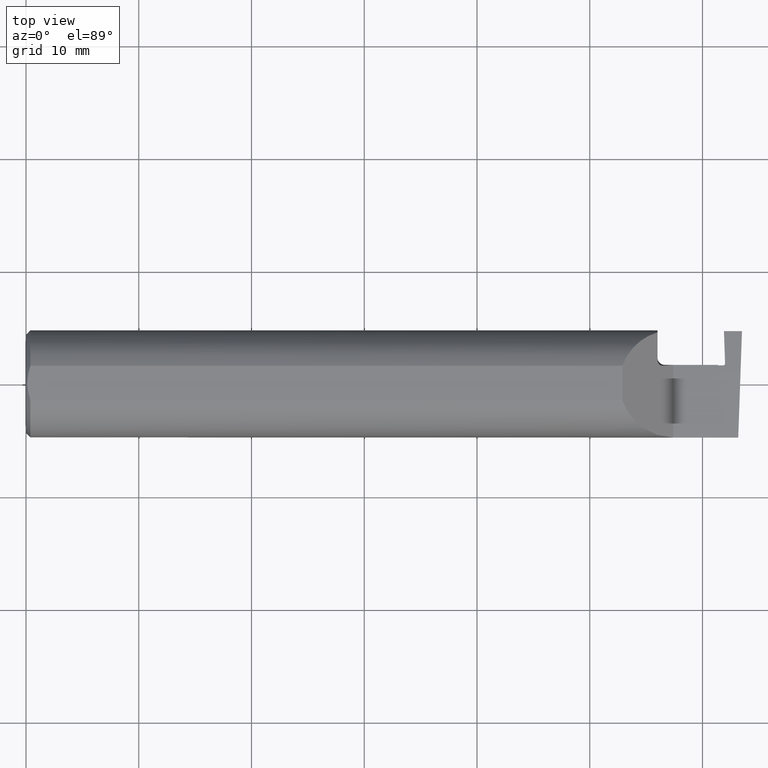
[diagram: clean part render]
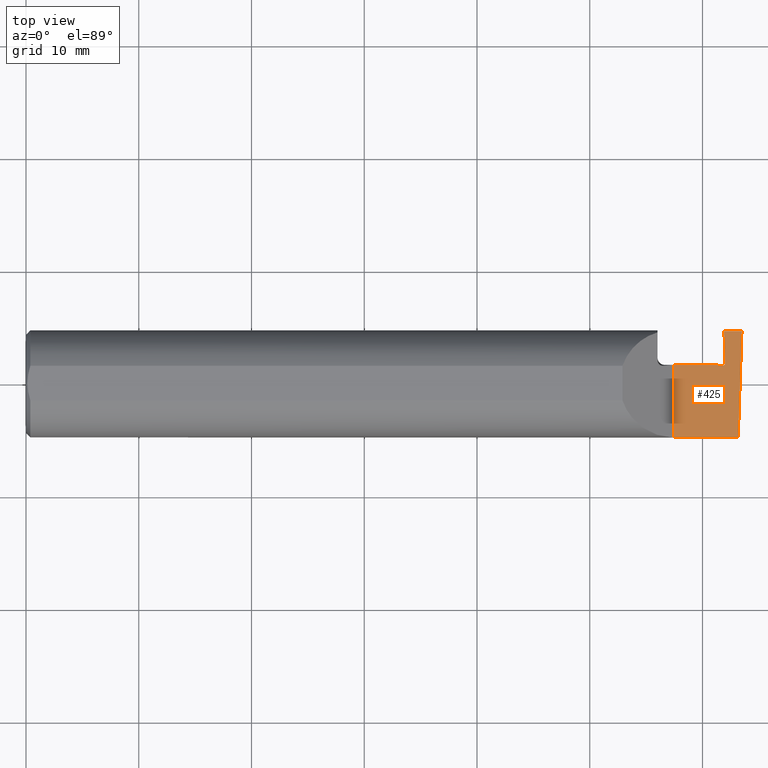
[diagram: same view with one face highlighted and labeled with its STEP entity id]
A machine part, top view. The second image highlights one B-rep face of the part: STEP entity #425.
In plain terms, the highlighted planar face has unit normal (-0, 0, -1).
Its self-contained STEP definition (entity closure, byte-faithful):
#44 = ORIENTED_EDGE ( 'NONE', *, *, #192, .F. ) ;
#57 = CARTESIAN_POINT ( 'NONE',  ( 2.440937515934103352, 0.07189429647678914626, -3.571176652070864819E-11 ) ) ;
#64 = LINE ( 'NONE', #581, #645 ) ;
#91 = VERTEX_POINT ( 'NONE', #189 ) ;
#100 = DIRECTION ( 'NONE',  ( -0.03489949670249478664, -0.9993908270190959842, 0.000000000000000000 ) ) ;
#112 = AXIS2_PLACEMENT_3D ( 'NONE', #188, #625, #898 ) ;
#118 = CARTESIAN_POINT ( 'NONE',  ( 2.436999999986550147, 0.1846500000000000363, -3.367778697655196529E-19 ) ) ;
#119 = VERTEX_POINT ( 'NONE', #759 ) ;
#125 = VECTOR ( 'NONE', #720, 39.37007874015748143 ) ;
#137 = LINE ( 'NONE', #436, #125 ) ;
#171 = ORIENTED_EDGE ( 'NONE', *, *, #405, .F. ) ;
#176 = CARTESIAN_POINT ( 'NONE',  ( 2.417000000002135884, 0.06465000000018855664, -3.058084338147589272E-11 ) ) ;
#180 = CARTESIAN_POINT ( 'NONE',  ( 2.433941780145767897, 0.06464999999996004498, -4.714302832023770872E-11 ) ) ;
#182 = CARTESIAN_POINT ( 'NONE',  ( 2.440937515934103352, 0.07189429647678914626, -3.571176652070864819E-11 ) ) ;
#188 = CARTESIAN_POINT ( 'NONE',  ( 2.500000000000000000, -0.2000000000000000111, 0.000000000000000000 ) ) ;
#189 = CARTESIAN_POINT ( 'NONE',  ( 2.260000000000000231, -0.1873499999999999888, 2.939152317953647352E-17 ) ) ;
#192 = EDGE_CURVE ( 'NONE', #119, #91, #646, .T. ) ;
#194 = EDGE_CURVE ( 'NONE', #674, #849, #519, .T. ) ;
#211 = DIRECTION ( 'NONE',  ( -0.000000000000000000, 1.000000000000000000, -0.000000000000000000 ) ) ;
#226 = B_SPLINE_CURVE_WITH_KNOTS ( 'NONE', 1,
 ( #693, #182 ),
 .UNSPECIFIED., .F., .F.,
 ( 2, 2 ),
 ( 6.214901063768139146E-15, 0.002865740601254453210 ),
 .UNSPECIFIED. ) ;
#297 = EDGE_CURVE ( 'NONE', #369, #857, #137, .T. ) ;
#301 = VECTOR ( 'NONE', #100, 39.37007874015748854 ) ;
#309 = CARTESIAN_POINT ( 'NONE',  ( 2.417000000002135884, 0.06465000000018855664, -3.058084338147589272E-11 ) ) ;
#338 = PLANE ( 'NONE',  #112 ) ;
#352 = EDGE_CURVE ( 'NONE', #567, #739, #573, .T. ) ;
#369 = VERTEX_POINT ( 'NONE', #118 ) ;
#391 = CARTESIAN_POINT ( 'NONE',  ( 2.415000000000238956, 0.06664999999976051193, 8.151265848729768027E-18 ) ) ;
#405 = EDGE_CURVE ( 'NONE', #512, #739, #688, .T. ) ;
#406 = CARTESIAN_POINT ( 'NONE',  ( 2.500000000000000000, 0.1846500000000000363, 0.000000000000000000 ) ) ;
#425 = ADVANCED_FACE ( 'NONE', ( #888 ), #338, .F. ) ;
#436 = CARTESIAN_POINT ( 'NONE',  ( 2.399999999999999911, 0.1846500000000000363, -3.367778697655196529E-19 ) ) ;
#478 = EDGE_CURVE ( 'NONE', #369, #674, #226, .T. ) ;
#479 = CARTESIAN_POINT ( 'NONE',  ( 2.415000000000238956, 0.06664999999976051193, 8.151265848729768027E-18 ) ) ;
#512 = VERTEX_POINT ( 'NONE', #709 ) ;
#519 =( BOUNDED_CURVE ( )  B_SPLINE_CURVE ( 3, ( #57, #916, #858, #854 ),
 .UNSPECIFIED., .F., .T. ) 
 B_SPLINE_CURVE_WITH_KNOTS ( ( 4, 4 ),
 ( 2.168404344971008627E-19, 0.0002839584297220872945 ),
 .UNSPECIFIED. ) 
 CURVE ( )  GEOMETRIC_REPRESENTATION_ITEM ( )  RATIONAL_B_SPLINE_CURVE ( ( 1.000000000000000000, 0.7964389136393332791, 0.7964389136393332791, 1.000000000000000000 ) ) 
 REPRESENTATION_ITEM ( '' )  );
#527 = EDGE_CURVE ( 'NONE', #91, #512, #64, .T. ) ;
#544 = ORIENTED_EDGE ( 'NONE', *, *, #840, .F. ) ;
#567 = VERTEX_POINT ( 'NONE', #790 ) ;
#573 = B_SPLINE_CURVE_WITH_KNOTS ( 'NONE', 1,
 ( #176, #391 ),
 .UNSPECIFIED., .F., .F.,
 ( 2, 2 ),
 ( 0.000000000000000000, 7.184204899493498860E-05 ),
 .UNSPECIFIED. ) ;
#581 = CARTESIAN_POINT ( 'NONE',  ( 2.260000000000000231, -0.2000000000000000111, 2.939152317953647352E-17 ) ) ;
#582 = ORIENTED_EDGE ( 'NONE', *, *, #352, .T. ) ;
#583 = CARTESIAN_POINT ( 'NONE',  ( 3.749399456654646757E-32, -0.1873499999999999888, 3.061616997868384127E-16 ) ) ;
#592 = ORIENTED_EDGE ( 'NONE', *, *, #297, .F. ) ;
#618 = ORIENTED_EDGE ( 'NONE', *, *, #527, .F. ) ;
#625 = DIRECTION ( 'NONE',  ( -1.224646799147353700E-16, 0.000000000000000000, -1.000000000000000000 ) ) ;
#630 = B_SPLINE_CURVE_WITH_KNOTS ( 'NONE', 1,
 ( #747, #309 ),
 .UNSPECIFIED., .F., .F.,
 ( 2, 2 ),
 ( 0.000000000000000000, 0.0004303212156482535966 ),
 .UNSPECIFIED. ) ;
#634 = DIRECTION ( 'NONE',  ( 1.000000000000000000, 0.000000000000000000, 0.000000000000000000 ) ) ;
#635 = VECTOR ( 'NONE', #920, 39.37007874015748143 ) ;
#639 = CARTESIAN_POINT ( 'NONE',  ( 2.440937515934103352, 0.07189429647678914626, -3.571176652070864819E-11 ) ) ;
#645 = VECTOR ( 'NONE', #211, 39.37007874015748143 ) ;
#646 = LINE ( 'NONE', #583, #635 ) ;
#674 = VERTEX_POINT ( 'NONE', #639 ) ;
#681 = ORIENTED_EDGE ( 'NONE', *, *, #194, .T. ) ;
#685 = CARTESIAN_POINT ( 'NONE',  ( 2.205000000000000071, 0.06665000000000002867, 3.612708057484693206E-17 ) ) ;
#687 = VECTOR ( 'NONE', #634, 39.37007874015748143 ) ;
#688 = LINE ( 'NONE', #685, #687 ) ;
#693 = CARTESIAN_POINT ( 'NONE',  ( 2.436999999986550147, 0.1846500000000000363, -3.367778697655196529E-19 ) ) ;
#694 = ORIENTED_EDGE ( 'NONE', *, *, #708, .T. ) ;
#705 = EDGE_LOOP ( 'NONE', ( #44, #544, #592, #811, #681, #694, #582, #171, #618 ) ) ;
#708 = EDGE_CURVE ( 'NONE', #849, #567, #630, .T. ) ;
#709 = CARTESIAN_POINT ( 'NONE',  ( 2.260000000000000231, 0.06665000000000002867, 2.939152317953647352E-17 ) ) ;
#720 = DIRECTION ( 'NONE',  ( 1.000000000000000000, -0.000000000000000000, -0.000000000000000000 ) ) ;
#739 = VERTEX_POINT ( 'NONE', #479 ) ;
#747 = CARTESIAN_POINT ( 'NONE',  ( 2.433941780145767897, 0.06464999999996004498, -4.714302832023770872E-11 ) ) ;
#759 = CARTESIAN_POINT ( 'NONE',  ( 2.487009473749072441, -0.1873499999999999055, 0.000000000000000000 ) ) ;
#790 = CARTESIAN_POINT ( 'NONE',  ( 2.417000000002135884, 0.06465000000018855664, -3.058084338147589272E-11 ) ) ;
#811 = ORIENTED_EDGE ( 'NONE', *, *, #478, .T. ) ;
#824 = LINE ( 'NONE', #406, #301 ) ;
#832 = CARTESIAN_POINT ( 'NONE',  ( 2.500000000000000000, 0.1846500000000000363, 0.000000000000000000 ) ) ;
#840 = EDGE_CURVE ( 'NONE', #857, #119, #824, .T. ) ;
#849 = VERTEX_POINT ( 'NONE', #180 ) ;
#854 = CARTESIAN_POINT ( 'NONE',  ( 2.433941780145767897, 0.06464999999996004498, -4.714302832023770872E-11 ) ) ;
#857 = VERTEX_POINT ( 'NONE', #832 ) ;
#858 = CARTESIAN_POINT ( 'NONE',  ( 2.438156691056187597, 0.06464999999995540980, -3.439384876572473958E-11 ) ) ;
#888 = FACE_OUTER_BOUND ( 'NONE', #705, .T. ) ;
#898 = DIRECTION ( 'NONE',  ( -1.000000000000000000, 0.000000000000000000, 1.224646799147353700E-16 ) ) ;
#916 = CARTESIAN_POINT ( 'NONE',  ( 2.441084614202324587, 0.06768195317418557178, -3.501195084150072946E-11 ) ) ;
#920 = DIRECTION ( 'NONE',  ( -1.000000000000000000, -0.000000000000000000, -0.000000000000000000 ) ) ;